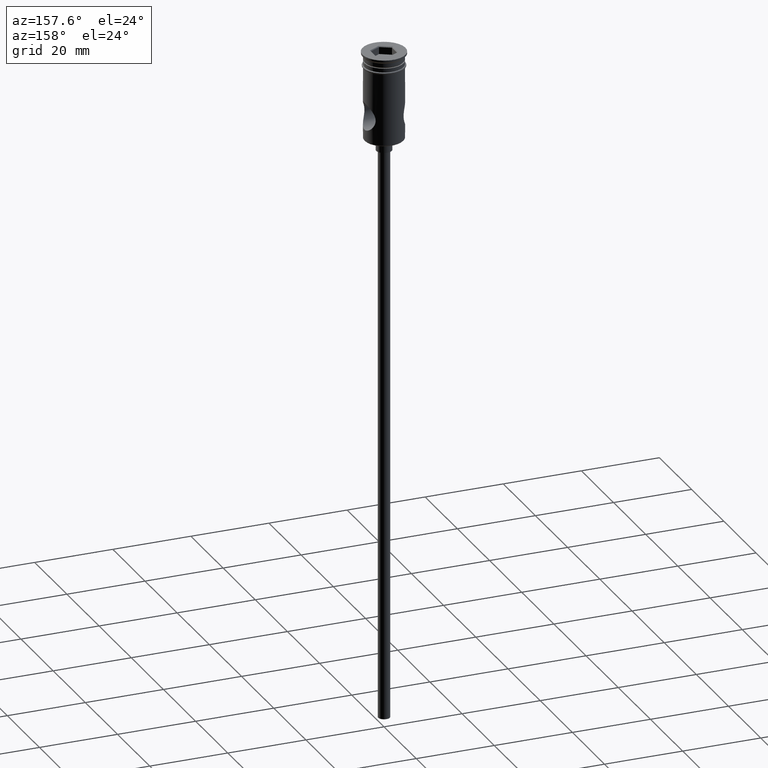
[diagram: clean part render]
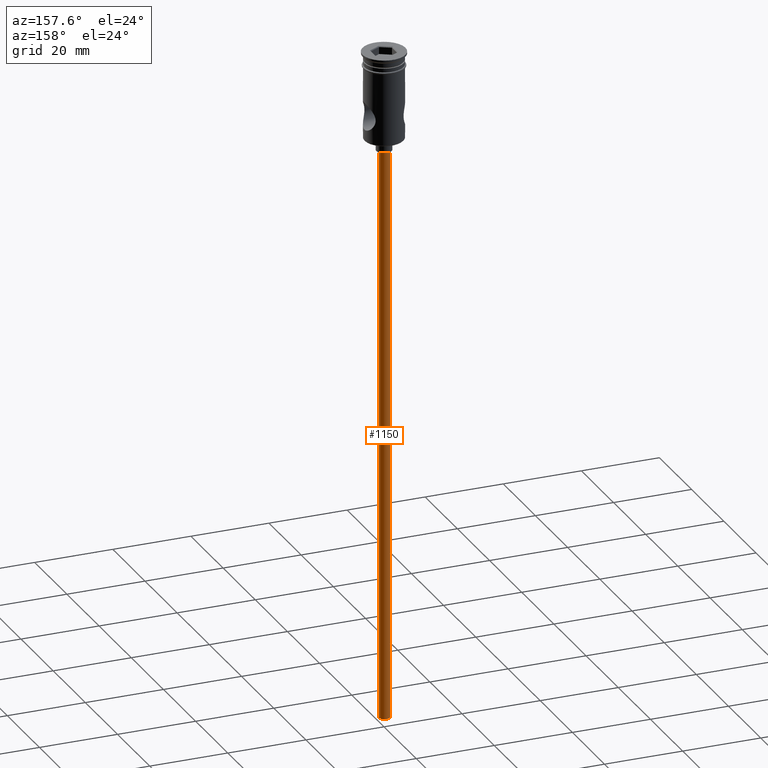
[diagram: same view with one face highlighted and labeled with its STEP entity id]
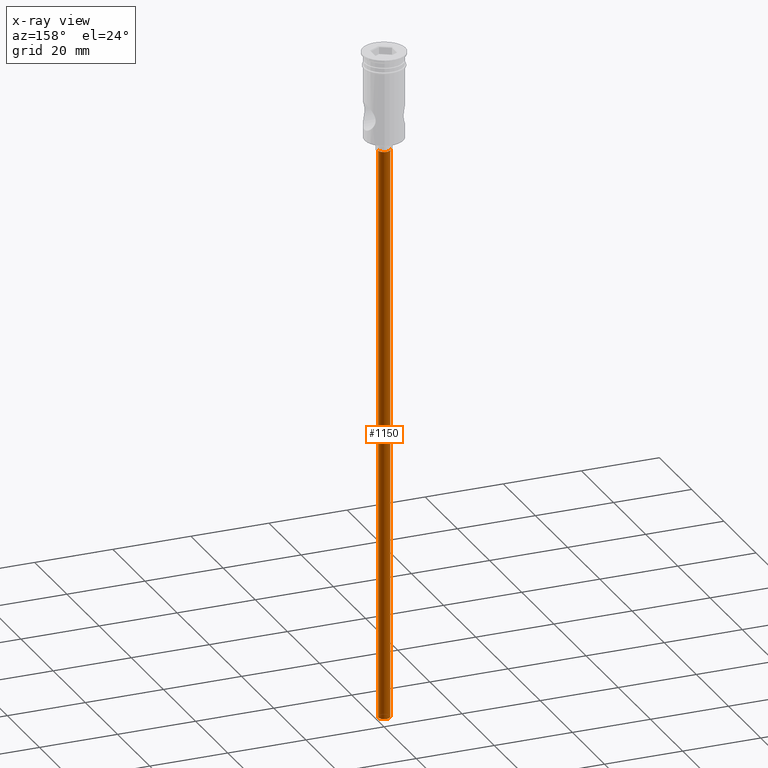
[diagram: x-ray of the same camera — body ghosted, the highlighted face saturated]
A machine part, auxiliary view. The second image highlights one B-rep face of the part: STEP entity #1150.
The next image is the same camera in x-ray: the body ghosted, the highlighted face saturated — about 0% of this face is hidden behind the body in this view.
In plain terms, the highlighted cylindrical surface (edge-blend (fillet) strip) has radius 1.5 mm, axis along (-0, -0, 1).
Its self-contained STEP definition (entity closure, byte-faithful):
#10 = CIRCLE ( 'NONE', #1256, 1.500000000000000222 ) ;
#47 = ORIENTED_EDGE ( 'NONE', *, *, #327, .F. ) ;
#63 = CARTESIAN_POINT ( 'NONE',  ( -1.500000000000000222, 1.836970198721030181E-16, -25.50000000000000000 ) ) ;
#84 = VERTEX_POINT ( 'NONE', #302 ) ;
#163 = DIRECTION ( 'NONE',  ( -0.000000000000000000, -0.000000000000000000, 1.000000000000000000 ) ) ;
#184 = DIRECTION ( 'NONE',  ( 1.000000000000000000, 0.000000000000000000, 0.000000000000000000 ) ) ;
#207 = DIRECTION ( 'NONE',  ( -0.000000000000000000, -0.000000000000000000, 1.000000000000000000 ) ) ;
#237 = ORIENTED_EDGE ( 'NONE', *, *, #1319, .F. ) ;
#258 = EDGE_LOOP ( 'NONE', ( #47, #1055, #849, #237 ) ) ;
#268 = DIRECTION ( 'NONE',  ( 0.000000000000000000, 0.000000000000000000, -1.000000000000000000 ) ) ;
#298 = DIRECTION ( 'NONE',  ( -1.000000000000000000, 0.000000000000000000, 0.000000000000000000 ) ) ;
#302 = CARTESIAN_POINT ( 'NONE',  ( 1.500000000000000222, 0.000000000000000000, -25.50000000000000000 ) ) ;
#310 = CARTESIAN_POINT ( 'NONE',  ( -1.500000000000000222, 1.836970198721030181E-16, -172.5000000000000000 ) ) ;
#313 = CARTESIAN_POINT ( 'NONE',  ( 0.000000000000000000, 0.000000000000000000, -172.5000000000000000 ) ) ;
#327 = EDGE_CURVE ( 'NONE', #1133, #1417, #10, .T. ) ;
#368 = VECTOR ( 'NONE', #557, 1000.000000000000000 ) ;
#410 = VECTOR ( 'NONE', #207, 1000.000000000000000 ) ;
#439 = FACE_OUTER_BOUND ( 'NONE', #258, .T. ) ;
#544 = AXIS2_PLACEMENT_3D ( 'NONE', #313, #163, #184 ) ;
#557 = DIRECTION ( 'NONE',  ( -0.000000000000000000, -0.000000000000000000, 1.000000000000000000 ) ) ;
#581 = CARTESIAN_POINT ( 'NONE',  ( 1.500000000000000222, 0.000000000000000000, -172.5000000000000000 ) ) ;
#609 = CARTESIAN_POINT ( 'NONE',  ( 0.000000000000000000, 0.000000000000000000, -172.5000000000000000 ) ) ;
#630 = CARTESIAN_POINT ( 'NONE',  ( 0.000000000000000000, 0.000000000000000000, -25.50000000000000000 ) ) ;
#718 = DIRECTION ( 'NONE',  ( -1.000000000000000000, 0.000000000000000000, 0.000000000000000000 ) ) ;
#726 = EDGE_CURVE ( 'NONE', #822, #84, #784, .T. ) ;
#739 = AXIS2_PLACEMENT_3D ( 'NONE', #630, #1303, #298 ) ;
#781 = LINE ( 'NONE', #787, #368 ) ;
#784 = CIRCLE ( 'NONE', #739, 1.500000000000000222 ) ;
#787 = CARTESIAN_POINT ( 'NONE',  ( 1.500000000000000222, 0.000000000000000000, -172.5000000000000000 ) ) ;
#822 = VERTEX_POINT ( 'NONE', #63 ) ;
#849 = ORIENTED_EDGE ( 'NONE', *, *, #726, .T. ) ;
#1005 = CARTESIAN_POINT ( 'NONE',  ( -1.500000000000000222, 1.836970198721030181E-16, -172.5000000000000000 ) ) ;
#1055 = ORIENTED_EDGE ( 'NONE', *, *, #1140, .T. ) ;
#1133 = VERTEX_POINT ( 'NONE', #310 ) ;
#1140 = EDGE_CURVE ( 'NONE', #1133, #822, #1228, .T. ) ;
#1150 = ADVANCED_FACE ( 'NONE', ( #439 ), #1415, .T. ) ;
#1228 = LINE ( 'NONE', #1005, #410 ) ;
#1256 = AXIS2_PLACEMENT_3D ( 'NONE', #609, #268, #718 ) ;
#1303 = DIRECTION ( 'NONE',  ( 0.000000000000000000, 0.000000000000000000, -1.000000000000000000 ) ) ;
#1319 = EDGE_CURVE ( 'NONE', #1417, #84, #781, .T. ) ;
#1415 = CYLINDRICAL_SURFACE ( 'NONE', #544, 1.500000000000000222 ) ;
#1417 = VERTEX_POINT ( 'NONE', #581 ) ;